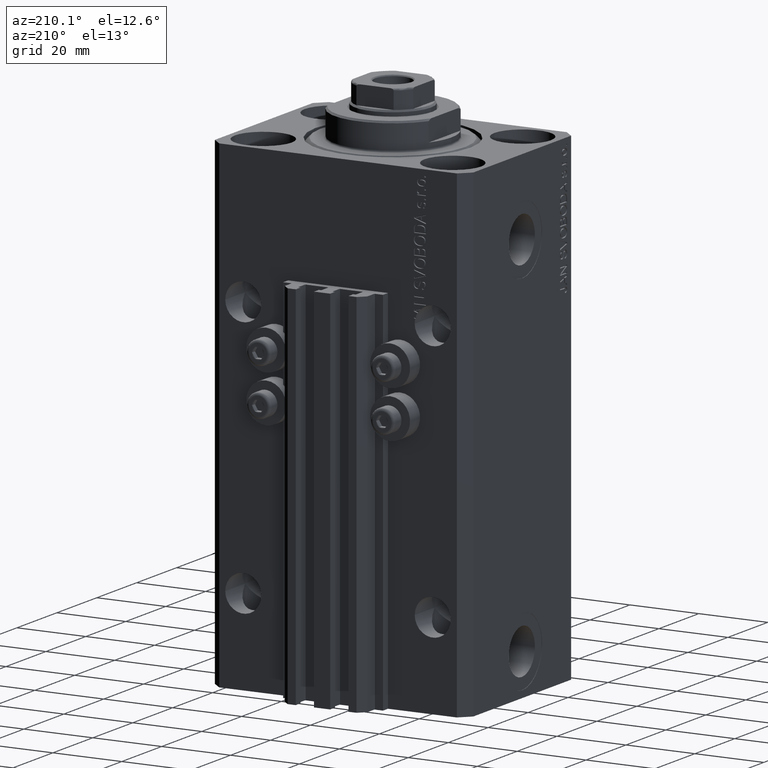
[diagram: clean part render]
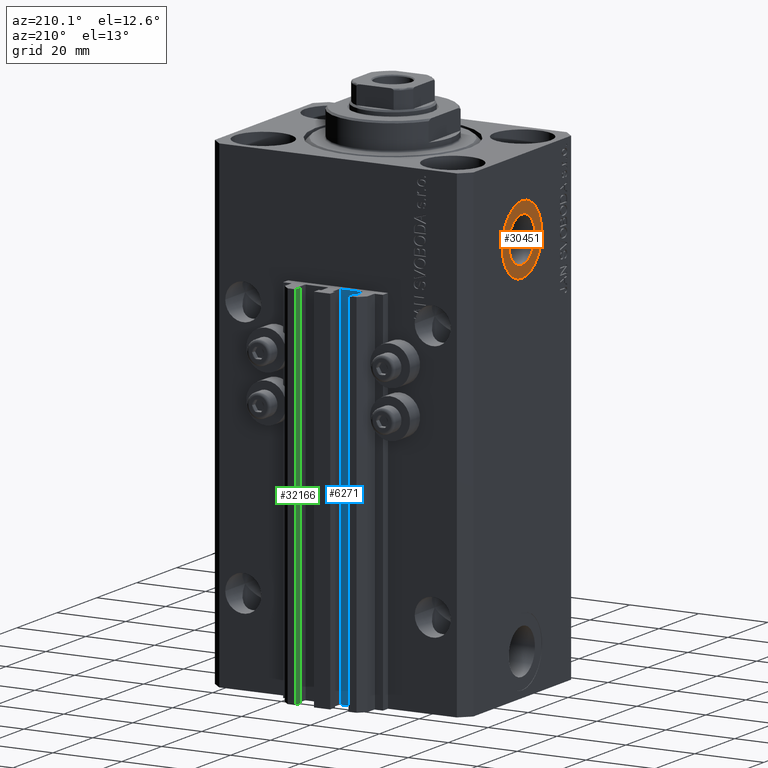
[diagram: same view with three faces highlighted in distinct colors, each labeled with its STEP entity id]
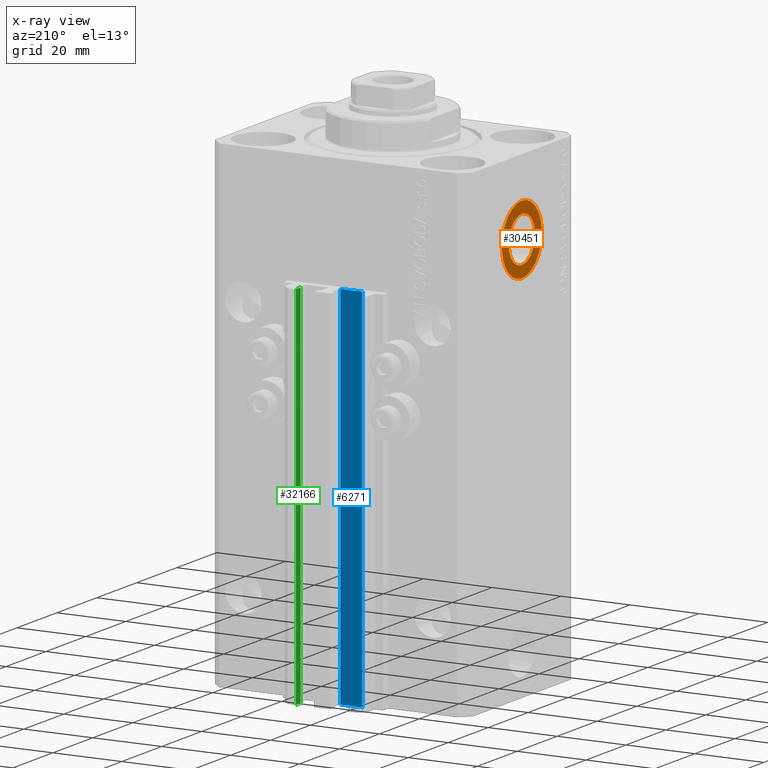
[diagram: x-ray of the same camera — body ghosted, the three highlighted faces saturated]
A machine part, auxiliary view with three faces highlighted in distinct colors.
The next image is the same camera in x-ray (body ghosted, the three faces saturated) — at least one of them is partly hidden behind the body in this view.
Their STEP definitions:

[orange] entity #30451 — the highlighted planar face has unit normal (-1, 0, 0).
#1381 = CARTESIAN_POINT ( 'NONE',  ( -37.39999999999999147, 8.058175938389579572E-16, -28.57999999999999829 ) ) ;
#4391 = DIRECTION ( 'NONE',  ( 0.000000000000000000, 0.000000000000000000, 1.000000000000000000 ) ) ;
#4949 = DIRECTION ( 'NONE',  ( 0.000000000000000000, 0.000000000000000000, 1.000000000000000000 ) ) ;
#5795 = DIRECTION ( 'NONE',  ( -1.000000000000000000, 0.000000000000000000, 0.000000000000000000 ) ) ;
#6315 = EDGE_CURVE ( 'NONE', #12514, #15507, #7450, .T. ) ;
#6500 = EDGE_LOOP ( 'NONE', ( #35474, #12769 ) ) ;
#7450 = CIRCLE ( 'NONE', #26550, 10.00000000000000000 ) ;
#7731 = CIRCLE ( 'NONE', #13830, 6.579999999999999183 ) ;
#10616 = ORIENTED_EDGE ( 'NONE', *, *, #6315, .T. ) ;
#12221 = DIRECTION ( 'NONE',  ( -1.000000000000000000, 0.000000000000000000, 0.000000000000000000 ) ) ;
#12514 = VERTEX_POINT ( 'NONE', #27596 ) ;
#12769 = ORIENTED_EDGE ( 'NONE', *, *, #17435, .F. ) ;
#13439 = DIRECTION ( 'NONE',  ( 0.000000000000000000, 0.000000000000000000, 1.000000000000000000 ) ) ;
#13830 = AXIS2_PLACEMENT_3D ( 'NONE', #44601, #37643, #4391 ) ;
#14556 = AXIS2_PLACEMENT_3D ( 'NONE', #20613, #5795, #13439 ) ;
#15507 = VERTEX_POINT ( 'NONE', #20755 ) ;
#17435 = EDGE_CURVE ( 'NONE', #36869, #32617, #21141, .T. ) ;
#17613 = CIRCLE ( 'NONE', #30624, 10.00000000000000000 ) ;
#18222 = CARTESIAN_POINT ( 'NONE',  ( -37.39999999999999147, 0.000000000000000000, -15.41999999999999993 ) ) ;
#19924 = EDGE_LOOP ( 'NONE', ( #30996, #10616 ) ) ;
#20280 = DIRECTION ( 'NONE',  ( -1.000000000000000000, 0.000000000000000000, 0.000000000000000000 ) ) ;
#20613 = CARTESIAN_POINT ( 'NONE',  ( -37.39999999999999147, 0.000000000000000000, -22.00000000000000000 ) ) ;
#20755 = CARTESIAN_POINT ( 'NONE',  ( -37.39999999999999147, 0.000000000000000000, -11.99999999999999822 ) ) ;
#21141 = CIRCLE ( 'NONE', #38724, 6.579999999999999183 ) ;
#23841 = DIRECTION ( 'NONE',  ( -1.000000000000000000, 0.000000000000000000, 0.000000000000000000 ) ) ;
#26550 = AXIS2_PLACEMENT_3D ( 'NONE', #27722, #20280, #42329 ) ;
#26823 = CARTESIAN_POINT ( 'NONE',  ( -37.39999999999999147, 0.000000000000000000, -22.00000000000000000 ) ) ;
#27596 = CARTESIAN_POINT ( 'NONE',  ( -37.39999999999999147, 1.224646799147353059E-15, -32.00000000000000000 ) ) ;
#27722 = CARTESIAN_POINT ( 'NONE',  ( -37.39999999999999147, 0.000000000000000000, -22.00000000000000000 ) ) ;
#30451 = ADVANCED_FACE ( 'NONE', ( #45309, #46020 ), #39056, .T. ) ;
#30624 = AXIS2_PLACEMENT_3D ( 'NONE', #26823, #12221, #44792 ) ;
#30996 = ORIENTED_EDGE ( 'NONE', *, *, #33273, .T. ) ;
#31292 = EDGE_CURVE ( 'NONE', #32617, #36869, #7731, .T. ) ;
#32617 = VERTEX_POINT ( 'NONE', #18222 ) ;
#33273 = EDGE_CURVE ( 'NONE', #15507, #12514, #17613, .T. ) ;
#35474 = ORIENTED_EDGE ( 'NONE', *, *, #31292, .F. ) ;
#36869 = VERTEX_POINT ( 'NONE', #1381 ) ;
#37643 = DIRECTION ( 'NONE',  ( -1.000000000000000000, 0.000000000000000000, 0.000000000000000000 ) ) ;
#37746 = CARTESIAN_POINT ( 'NONE',  ( -37.39999999999999147, 0.000000000000000000, -22.00000000000000000 ) ) ;
#38724 = AXIS2_PLACEMENT_3D ( 'NONE', #37746, #23841, #4949 ) ;
#39056 = PLANE ( 'NONE',  #14556 ) ;
#42329 = DIRECTION ( 'NONE',  ( 0.000000000000000000, 0.000000000000000000, 1.000000000000000000 ) ) ;
#44601 = CARTESIAN_POINT ( 'NONE',  ( -37.39999999999999147, 0.000000000000000000, -22.00000000000000000 ) ) ;
#44792 = DIRECTION ( 'NONE',  ( 0.000000000000000000, 0.000000000000000000, 1.000000000000000000 ) ) ;
#45309 = FACE_BOUND ( 'NONE', #6500, .T. ) ;
#46020 = FACE_OUTER_BOUND ( 'NONE', #19924, .T. ) ;

[blue] entity #6271 — the highlighted planar face has unit normal (0, 1, 0).
#735 = DIRECTION ( 'NONE',  ( 0.000000000000000000, 0.000000000000000000, 1.000000000000000000 ) ) ;
#1412 = FACE_OUTER_BOUND ( 'NONE', #23671, .T. ) ;
#2856 = EDGE_CURVE ( 'NONE', #14643, #32006, #45124, .T. ) ;
#3103 = CARTESIAN_POINT ( 'NONE',  ( -1.800000000000000933, 29.50000000000000355, -140.0000000000000000 ) ) ;
#4470 = EDGE_CURVE ( 'NONE', #32006, #11369, #17203, .T. ) ;
#4938 = ORIENTED_EDGE ( 'NONE', *, *, #8232, .T. ) ;
#4951 = VERTEX_POINT ( 'NONE', #6052 ) ;
#5949 = DIRECTION ( 'NONE',  ( 0.000000000000000000, 1.000000000000000000, -0.000000000000000000 ) ) ;
#6052 = CARTESIAN_POINT ( 'NONE',  ( -8.199999999999997513, 29.50000000000000355, -140.0000000000000000 ) ) ;
#6271 = ADVANCED_FACE ( 'NONE', ( #1412 ), #38257, .T. ) ;
#6414 = ORIENTED_EDGE ( 'NONE', *, *, #4470, .F. ) ;
#8232 = EDGE_CURVE ( 'NONE', #4951, #11369, #11505, .T. ) ;
#10571 = CARTESIAN_POINT ( 'NONE',  ( -8.199999999999997513, 29.50000000000000355, -140.0000000000000000 ) ) ;
#11369 = VERTEX_POINT ( 'NONE', #33602 ) ;
#11505 = LINE ( 'NONE', #10571, #34245 ) ;
#14643 = VERTEX_POINT ( 'NONE', #20689 ) ;
#15702 = VECTOR ( 'NONE', #44652, 1000.000000000000000 ) ;
#16967 = DIRECTION ( 'NONE',  ( -1.000000000000000000, 0.000000000000000000, 0.000000000000000000 ) ) ;
#17203 = LINE ( 'NONE', #39014, #43344 ) ;
#18184 = ORIENTED_EDGE ( 'NONE', *, *, #2856, .F. ) ;
#19045 = CARTESIAN_POINT ( 'NONE',  ( -1.800000000000000933, 29.50000000000000355, -33.00000000000000000 ) ) ;
#20689 = CARTESIAN_POINT ( 'NONE',  ( -1.800000000000000933, 29.50000000000000355, -140.0000000000000000 ) ) ;
#21971 = AXIS2_PLACEMENT_3D ( 'NONE', #45450, #5949, #38026 ) ;
#23671 = EDGE_LOOP ( 'NONE', ( #6414, #18184, #32850, #4938 ) ) ;
#25702 = VECTOR ( 'NONE', #16967, 1000.000000000000000 ) ;
#31832 = DIRECTION ( 'NONE',  ( -1.000000000000000000, 0.000000000000000000, 0.000000000000000000 ) ) ;
#32006 = VERTEX_POINT ( 'NONE', #19045 ) ;
#32850 = ORIENTED_EDGE ( 'NONE', *, *, #44885, .T. ) ;
#33602 = CARTESIAN_POINT ( 'NONE',  ( -8.199999999999997513, 29.50000000000000355, -33.00000000000000000 ) ) ;
#34245 = VECTOR ( 'NONE', #735, 1000.000000000000000 ) ;
#35659 = LINE ( 'NONE', #3103, #25702 ) ;
#38026 = DIRECTION ( 'NONE',  ( 0.000000000000000000, 0.000000000000000000, 1.000000000000000000 ) ) ;
#38257 = PLANE ( 'NONE',  #21971 ) ;
#39014 = CARTESIAN_POINT ( 'NONE',  ( -1.800000000000000933, 29.50000000000000355, -33.00000000000000000 ) ) ;
#41073 = CARTESIAN_POINT ( 'NONE',  ( -1.800000000000000933, 29.50000000000000355, -140.0000000000000000 ) ) ;
#43344 = VECTOR ( 'NONE', #31832, 1000.000000000000000 ) ;
#44652 = DIRECTION ( 'NONE',  ( 0.000000000000000000, 0.000000000000000000, 1.000000000000000000 ) ) ;
#44885 = EDGE_CURVE ( 'NONE', #14643, #4951, #35659, .T. ) ;
#45124 = LINE ( 'NONE', #41073, #15702 ) ;
#45450 = CARTESIAN_POINT ( 'NONE',  ( -1.800000000000000933, 29.50000000000000355, -140.0000000000000000 ) ) ;

[green] entity #32166 — the highlighted planar face has unit normal (-1, 0, 0).
#27 = LINE ( 'NONE', #6964, #20141 ) ;
#1879 = CARTESIAN_POINT ( 'NONE',  ( 7.649999999999998579, 35.50000000000001421, -140.0000000000000000 ) ) ;
#2284 = ORIENTED_EDGE ( 'NONE', *, *, #21001, .F. ) ;
#4604 = LINE ( 'NONE', #29270, #37193 ) ;
#4826 = CARTESIAN_POINT ( 'NONE',  ( 7.649999999999998579, 33.10000000000001563, -140.0000000000000000 ) ) ;
#5305 = EDGE_CURVE ( 'NONE', #16460, #20861, #40690, .T. ) ;
#5854 = CARTESIAN_POINT ( 'NONE',  ( 7.649999999999998579, 35.50000000000001421, -140.0000000000000000 ) ) ;
#6964 = CARTESIAN_POINT ( 'NONE',  ( 7.649999999999998579, 35.50000000000001421, -140.0000000000000000 ) ) ;
#7169 = CARTESIAN_POINT ( 'NONE',  ( 7.649999999999998579, 35.50000000000001421, -140.0000000000000000 ) ) ;
#7876 = DIRECTION ( 'NONE',  ( 0.000000000000000000, 0.000000000000000000, 1.000000000000000000 ) ) ;
#9884 = CARTESIAN_POINT ( 'NONE',  ( 7.649999999999998579, 35.50000000000001421, -33.00000000000000000 ) ) ;
#9982 = ORIENTED_EDGE ( 'NONE', *, *, #31800, .T. ) ;
#10822 = EDGE_CURVE ( 'NONE', #16460, #44420, #27, .T. ) ;
#10845 = AXIS2_PLACEMENT_3D ( 'NONE', #5854, #31465, #38882 ) ;
#13202 = VERTEX_POINT ( 'NONE', #23076 ) ;
#13896 = DIRECTION ( 'NONE',  ( 0.000000000000000000, -1.000000000000000000, 0.000000000000000000 ) ) ;
#16460 = VERTEX_POINT ( 'NONE', #1879 ) ;
#16605 = FACE_OUTER_BOUND ( 'NONE', #30524, .T. ) ;
#17846 = CARTESIAN_POINT ( 'NONE',  ( 7.649999999999998579, 33.10000000000001563, -140.0000000000000000 ) ) ;
#18090 = LINE ( 'NONE', #17846, #39085 ) ;
#18563 = DIRECTION ( 'NONE',  ( 0.000000000000000000, 0.000000000000000000, 1.000000000000000000 ) ) ;
#19627 = VECTOR ( 'NONE', #7876, 1000.000000000000000 ) ;
#20141 = VECTOR ( 'NONE', #13896, 1000.000000000000000 ) ;
#20861 = VERTEX_POINT ( 'NONE', #9884 ) ;
#21001 = EDGE_CURVE ( 'NONE', #20861, #13202, #4604, .T. ) ;
#23076 = CARTESIAN_POINT ( 'NONE',  ( 7.649999999999998579, 33.10000000000001563, -33.00000000000000000 ) ) ;
#29270 = CARTESIAN_POINT ( 'NONE',  ( 7.649999999999998579, 35.50000000000001421, -33.00000000000000000 ) ) ;
#30524 = EDGE_LOOP ( 'NONE', ( #2284, #35586, #46674, #9982 ) ) ;
#31231 = PLANE ( 'NONE',  #10845 ) ;
#31465 = DIRECTION ( 'NONE',  ( -1.000000000000000000, 0.000000000000000000, 0.000000000000000000 ) ) ;
#31800 = EDGE_CURVE ( 'NONE', #44420, #13202, #18090, .T. ) ;
#32166 = ADVANCED_FACE ( 'NONE', ( #16605 ), #31231, .T. ) ;
#35586 = ORIENTED_EDGE ( 'NONE', *, *, #5305, .F. ) ;
#37193 = VECTOR ( 'NONE', #40286, 1000.000000000000000 ) ;
#38882 = DIRECTION ( 'NONE',  ( 0.000000000000000000, 0.000000000000000000, 1.000000000000000000 ) ) ;
#39085 = VECTOR ( 'NONE', #18563, 1000.000000000000000 ) ;
#40286 = DIRECTION ( 'NONE',  ( 0.000000000000000000, -1.000000000000000000, 0.000000000000000000 ) ) ;
#40690 = LINE ( 'NONE', #7169, #19627 ) ;
#44420 = VERTEX_POINT ( 'NONE', #4826 ) ;
#46674 = ORIENTED_EDGE ( 'NONE', *, *, #10822, .T. ) ;